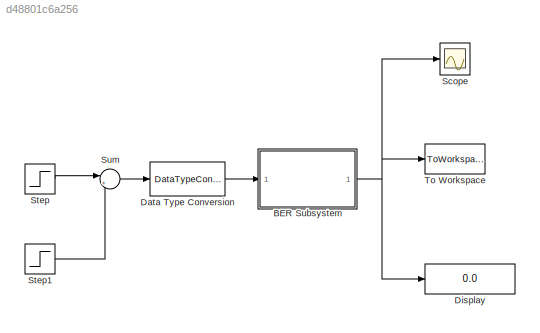
MODEL slx_d48801c6a256
KIND model
CONFIG AbsTol = auto
CONFIG EnableMultiTasking = off
CONFIG FixedStep = auto
CONFIG MaxStep = auto
CONFIG MinStep = auto
CONFIG RelTol = 1e-3
CONFIG SampleTimeConstraint = Unconstrained
CONFIG Solver = VariableStepAuto
CONFIG SolverName = VariableStepAuto
CONFIG StartTime = 0.0
CONFIG StopTime = 270
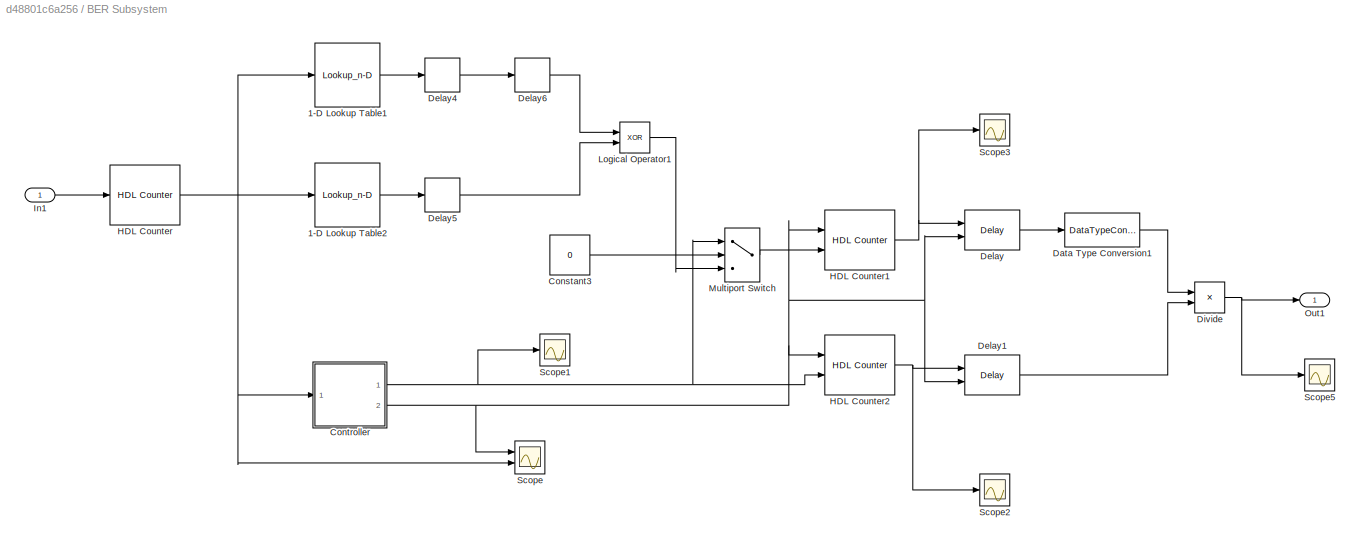
BLOCK [SubSystem] BER Subsystem
  Ports = [1, 1]
  RequestExecContextInheritance = off
  Variant = off
BLOCK [Lookup_n-D] BER Subsystem/1-D Lookup Table1
  BreakpointsForDimension1 = [0:255]
  BreakpointsForDimension1FirstPoint = 10
  BreakpointsForDimension1Spacing = 12
  BreakpointsForDimension2FirstPoint = 10
  BreakpointsForDimension2Spacing = 12
  DiagnosticForOutOfRangeInput = Error
  IndexSearchMethod = Evenly spaced points
  InternalRulePriority = Speed
  InterpMethod = Flat
  NumberOfTableDimensions = 1
  Ports = [1, 1]
  RndMeth = Simplest
  Table = true_data*1
BLOCK [Lookup_n-D] BER Subsystem/1-D Lookup Table2
  BreakpointsForDimension1 = [0:255]
  BreakpointsForDimension1FirstPoint = 10
  BreakpointsForDimension1Spacing = 12
  BreakpointsForDimension2FirstPoint = 10
  BreakpointsForDimension2Spacing = 12
  DiagnosticForOutOfRangeInput = Error
  IndexSearchMethod = Evenly spaced points
  InternalRulePriority = Speed
  InterpMethod = Flat
  NumberOfTableDimensions = 1
  Ports = [1, 1]
  RndMeth = Simplest
  Table = det_data*1
BLOCK [Constant] BER Subsystem/Constant3
  OutDataTypeStr = boolean
  SampleTime = -1
  Value = 0
  VectorParams1D = off
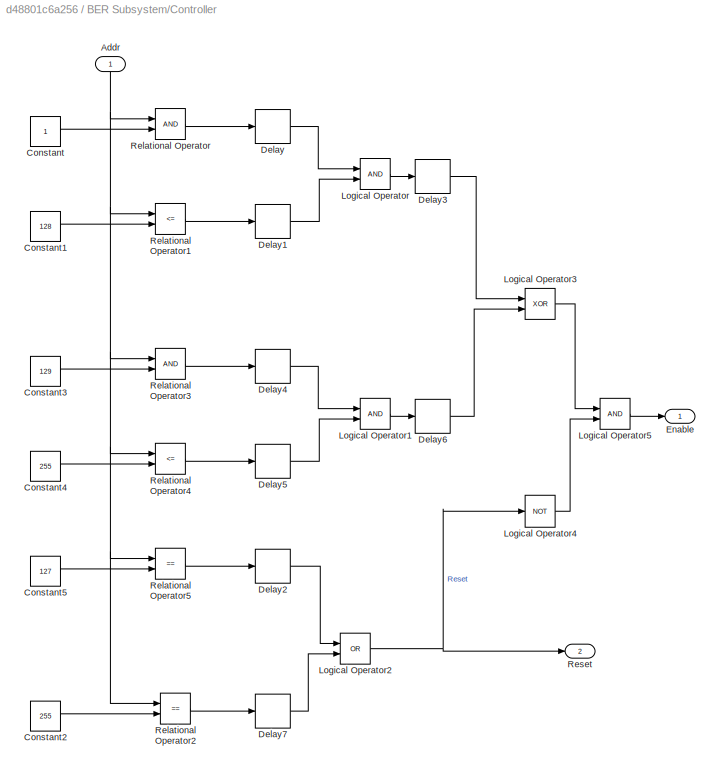
BLOCK [SubSystem] BER Subsystem/Controller
  Ports = [1, 2]
  RequestExecContextInheritance = off
  Variant = off
BLOCK [Inport] BER Subsystem/Controller/Addr
  IconDisplay = Port number
BLOCK [Constant] BER Subsystem/Controller/Constant
  OutDataTypeStr = fixdt(0,10,0)
BLOCK [Constant] BER Subsystem/Controller/Constant1
  OutDataTypeStr = fixdt(0,10,0)
  Value = 128
BLOCK [Constant] BER Subsystem/Controller/Constant2
  OutDataTypeStr = fixdt(0,10,0)
  Value = 255
BLOCK [Constant] BER Subsystem/Controller/Constant3
  OutDataTypeStr = fixdt(0,10,0)
  Value = 129
BLOCK [Constant] BER Subsystem/Controller/Constant4
  OutDataTypeStr = fixdt(0,10,0)
  Value = 255
BLOCK [Constant] BER Subsystem/Controller/Constant5
  OutDataTypeStr = fixdt(0,10,0)
  Value = 127
BLOCK [Delay] BER Subsystem/Controller/Delay
  DelayLength = 1
  InputPortMap = u0
  Ports = [1, 1]
BLOCK [Delay] BER Subsystem/Controller/Delay1
  DelayLength = 1
  InputPortMap = u0
  Ports = [1, 1]
BLOCK [Delay] BER Subsystem/Controller/Delay2
  DelayLength = 1
  InputPortMap = u0
  Ports = [1, 1]
BLOCK [Delay] BER Subsystem/Controller/Delay3
  DelayLength = 4
  InputPortMap = u0
  Ports = [1, 1]
BLOCK [Delay] BER Subsystem/Controller/Delay4
  DelayLength = 1
  InputPortMap = u0
  Ports = [1, 1]
BLOCK [Delay] BER Subsystem/Controller/Delay5
  DelayLength = 1
  InputPortMap = u0
  Ports = [1, 1]
BLOCK [Delay] BER Subsystem/Controller/Delay6
  DelayLength = 4
  InputPortMap = u0
  Ports = [1, 1]
BLOCK [Delay] BER Subsystem/Controller/Delay7
  DelayLength = 1
  InputPortMap = u0
  Ports = [1, 1]
BLOCK [Outport] BER Subsystem/Controller/Enable
  IconDisplay = Port number
BLOCK [Logic] BER Subsystem/Controller/Logical Operator
  AllPortsSameDT = off
  OutDataTypeStr = boolean
  Ports = [2, 1]
BLOCK [Logic] BER Subsystem/Controller/Logical Operator1
  AllPortsSameDT = off
  OutDataTypeStr = boolean
  Ports = [2, 1]
BLOCK [Logic] BER Subsystem/Controller/Logical Operator2
  AllPortsSameDT = off
  Operator = OR
  OutDataTypeStr = boolean
  Ports = [2, 1]
BLOCK [Logic] BER Subsystem/Controller/Logical Operator3
  AllPortsSameDT = off
  Operator = XOR
  OutDataTypeStr = boolean
  Ports = [2, 1]
BLOCK [Logic] BER Subsystem/Controller/Logical Operator4
  AllPortsSameDT = off
  Operator = NOT
  OutDataTypeStr = boolean
  Ports = [1, 1]
BLOCK [Logic] BER Subsystem/Controller/Logical Operator5
  AllPortsSameDT = off
  OutDataTypeStr = boolean
  Ports = [2, 1]
BLOCK [RelationalOperator] BER Subsystem/Controller/Relational Operator
  InputSameDT = off
  OutDataTypeStr = boolean
  Ports = [2, 1]
  RndMeth = Simplest
BLOCK [RelationalOperator] BER Subsystem/Controller/Relational Operator1
  InputSameDT = off
  Operator = <=
  OutDataTypeStr = boolean
  Ports = [2, 1]
BLOCK [RelationalOperator] BER Subsystem/Controller/Relational Operator2
  InputSameDT = off
  Operator = ==
  OutDataTypeStr = boolean
  Ports = [2, 1]
  RndMeth = Simplest
BLOCK [RelationalOperator] BER Subsystem/Controller/Relational Operator3
  InputSameDT = off
  OutDataTypeStr = boolean
  Ports = [2, 1]
  RndMeth = Simplest
BLOCK [RelationalOperator] BER Subsystem/Controller/Relational Operator4
  InputSameDT = off
  Operator = <=
  OutDataTypeStr = boolean
  Ports = [2, 1]
BLOCK [RelationalOperator] BER Subsystem/Controller/Relational Operator5
  InputSameDT = off
  Operator = ==
  OutDataTypeStr = boolean
  Ports = [2, 1]
  RndMeth = Simplest
BLOCK [Outport] BER Subsystem/Controller/Reset
  IconDisplay = Port number
  Port = 2
BLOCK [DataTypeConversion] BER Subsystem/Data Type Conversion1
  OutDataTypeStr = fixdt(1,17,13)
  RndMeth = Floor
  SaturateOnIntegerOverflow = off
BLOCK [Delay] BER Subsystem/Delay
  DelayLength = 1
  ExternalReset = Rising
  InitialCondition = 0
  InputPortMap = u0,r5
  Ports = [2, 1]
  UseCircularBuffer = on
  UserDataPersistent = on
BLOCK [Delay] BER Subsystem/Delay1
  DelayLength = 1
  ExternalReset = Rising
  InitialCondition = 0
  InputPortMap = u0,r5
  Ports = [2, 1]
  UseCircularBuffer = on
  UserDataPersistent = on
BLOCK [Delay] BER Subsystem/Delay4
  DelayLength = 1
  InputPortMap = u0
  Ports = [1, 1]
BLOCK [Delay] BER Subsystem/Delay5
  DelayLength = 1
  InputPortMap = u0
  Ports = [1, 1]
BLOCK [Delay] BER Subsystem/Delay6
  DelayLength = 5
  InputPortMap = u0
  Ports = [1, 1]
BLOCK [Product] BER Subsystem/Divide
  InputSameDT = off
  Inputs = */
  OutDataTypeStr = fixdt(1,17,13)
  Ports = [2, 1]
  RndMeth = Floor
  SaturateOnIntegerOverflow = off
BLOCK [Reference] BER Subsystem/HDL Counter  REF=hdlsllib/HDL Operations/HDL Counter
  Ports = [1, 1]
  SourceBlock = hdlsllib/HDL Operations/HDL Counter
  SourceType = HDL Counter
BLOCK [Reference] BER Subsystem/HDL Counter1  REF=hdlsllib/HDL Operations/HDL Counter
  Ports = [2, 1]
  SourceBlock = hdlsllib/HDL Operations/HDL Counter
  SourceType = HDL Counter
BLOCK [Reference] BER Subsystem/HDL Counter2  REF=hdlsllib/HDL Operations/HDL Counter
  Ports = [2, 1]
  SourceBlock = hdlsllib/HDL Operations/HDL Counter
  SourceType = HDL Counter
BLOCK [Inport] BER Subsystem/In1
  IconDisplay = Port number
BLOCK [Logic] BER Subsystem/Logical Operator1
  AllPortsSameDT = off
  Operator = XOR
  OutDataTypeStr = boolean
  Ports = [2, 1]
BLOCK [MultiPortSwitch] BER Subsystem/Multiport Switch
  DataPortOrder = Zero-based contiguous
  InputSameDT = off
  Inputs = 2
  Ports = [3, 1]
  SaturateOnIntegerOverflow = off
BLOCK [Outport] BER Subsystem/Out1
  IconDisplay = Port number
BLOCK [Scope] BER Subsystem/Scope
  NumInputPorts = 2
  Ports = [2]
  ScopeSpecificationString = Simulink.scopes.TimeScopeBlockCfg('CurrentConfiguration', extmgr.ConfigurationSet(extmgr.Configuration('Core','General UI',true),extmgr.Configuration('Core','Source UI',true),extmgr.Configuration('Sources','WiredSimulink',true,'DataLoggingVariableName','ScopeData1'),extmgr.Configuration('Visuals','Time Domain',true,'SerializedDisplays',{struct('MinYLimReal','-18.40551','MaxYLimReal','124.41675','Y...<+1474ch>
BLOCK [Scope] BER Subsystem/Scope1
  NumInputPorts = 1
  Ports = [1]
  ScopeSpecificationString = Simulink.scopes.TimeScopeBlockCfg('CurrentConfiguration', extmgr.ConfigurationSet(extmgr.Configuration('Core','General UI',true),extmgr.Configuration('Core','Source UI',true),extmgr.Configuration('Sources','WiredSimulink',true,'DataLoggingVariableName','ScopeData2'),extmgr.Configuration('Visuals','Time Domain',true,'SerializedDisplays',{struct('MinYLimReal','-0.125','MaxYLimReal','1.125','YLabelRe...<+1359ch>
BLOCK [Scope] BER Subsystem/Scope2
  NumInputPorts = 1
  Ports = [1]
  ScopeSpecificationString = Simulink.scopes.TimeScopeBlockCfg('CurrentConfiguration', extmgr.ConfigurationSet(extmgr.Configuration('Core','General UI',true),extmgr.Configuration('Core','Source UI',true),extmgr.Configuration('Sources','WiredSimulink',true,'DataLoggingVariableName','ScopeData3'),extmgr.Configuration('Visuals','Time Domain',true,'SerializedDisplays',{struct('MinYLimReal','-14.25','MaxYLimReal','138.25','YLabelR...<+1465ch>
BLOCK [Scope] BER Subsystem/Scope3
  NumInputPorts = 1
  Ports = [1]
  ScopeSpecificationString = Simulink.scopes.TimeScopeBlockCfg('CurrentConfiguration', extmgr.ConfigurationSet(extmgr.Configuration('Core','General UI',true),extmgr.Configuration('Core','Source UI',true),extmgr.Configuration('Sources','WiredSimulink',true,'DataLoggingVariableName','ScopeData4'),extmgr.Configuration('Visuals','Time Domain',true,'SerializedDisplays',{struct('MinYLimReal','-0.87019','MaxYLimReal','17.19031','YLa...<+1450ch>
BLOCK [Scope] BER Subsystem/Scope5
  NumInputPorts = 1
  Ports = [1]
  ScopeSpecificationString = Simulink.scopes.TimeScopeBlockCfg('CurrentConfiguration', extmgr.ConfigurationSet(extmgr.Configuration('Core','General UI',true),extmgr.Configuration('Core','Source UI',true),extmgr.Configuration('Sources','WiredSimulink',true,'DataLoggingVariableName','ScopeData5'),extmgr.Configuration('Visuals','Time Domain',true,'SerializedDisplays',{struct('MinYLimReal','0.03136','MaxYLimReal','0.03331','YLabe...<+1440ch>
BLOCK [DataTypeConversion] Data Type Conversion
  OutDataTypeStr = boolean
  RndMeth = Floor
  SaturateOnIntegerOverflow = off
BLOCK [Display] Display
  Decimation = 1
  Ports = [1]
BLOCK [Scope] Scope
  NumInputPorts = 1
  Ports = [1]
  ScopeSpecificationString = Simulink.scopes.TimeScopeBlockCfg('CurrentConfiguration', extmgr.ConfigurationSet(extmgr.Configuration('Core','General UI',true),extmgr.Configuration('Core','Source UI',true),extmgr.Configuration('Sources','WiredSimulink',true),extmgr.Configuration('Visuals','Time Domain',true,'SerializedDisplays',{struct('MinYLimReal','-0.99998','MaxYLimReal','8.99986','YLabelReal','','MinYLimMag','0.00000','MaxY...<+1333ch>
BLOCK [Step] Step
  SampleTime = 1
  Time = 0
BLOCK [Step] Step1
  SampleTime = 1
BLOCK [Sum] Sum
  IconShape = round
  InputSameDT = off
  Inputs = |+-
  OutDataTypeStr = Inherit: Inherit via internal rule
  Ports = [2, 1]
  SaturateOnIntegerOverflow = off
BLOCK [ToWorkspace] To Workspace
  FixptAsFi = on
  MaxDataPoints = inf
  Ports = [1]
  SampleTime = -1
  Save2DSignal = 3-D array (concatenate along third dimension)
  VariableName = BER
LINE BER Subsystem/1-D Lookup Table1:1 -> BER Subsystem/Delay4:1
LINE BER Subsystem/1-D Lookup Table2:1 -> BER Subsystem/Delay5:1
LINE BER Subsystem/Constant3:1 -> BER Subsystem/Multiport Switch:2
NET BER Subsystem/Controller/Addr:1 -> BER Subsystem/Controller/Relational Operator1:1, BER Subsystem/Controller/Relational Operator2:1, BER Subsystem/Controller/Relational Operator3:1, BER Subsystem/Controller/Relational Operator4:1, BER Subsystem/Controller/Relational Operator5:1, BER Subsystem/Controller/Relational Operator:1
LINE BER Subsystem/Controller/Constant1:1 -> BER Subsystem/Controller/Relational Operator1:2
LINE BER Subsystem/Controller/Constant2:1 -> BER Subsystem/Controller/Relational Operator2:2
LINE BER Subsystem/Controller/Constant3:1 -> BER Subsystem/Controller/Relational Operator3:2
LINE BER Subsystem/Controller/Constant4:1 -> BER Subsystem/Controller/Relational Operator4:2
LINE BER Subsystem/Controller/Constant5:1 -> BER Subsystem/Controller/Relational Operator5:2
LINE BER Subsystem/Controller/Constant:1 -> BER Subsystem/Controller/Relational Operator:2
LINE BER Subsystem/Controller/Delay1:1 -> BER Subsystem/Controller/Logical Operator:2
LINE BER Subsystem/Controller/Delay2:1 -> BER Subsystem/Controller/Logical Operator2:1
LINE BER Subsystem/Controller/Delay3:1 -> BER Subsystem/Controller/Logical Operator3:1
LINE BER Subsystem/Controller/Delay4:1 -> BER Subsystem/Controller/Logical Operator1:1
LINE BER Subsystem/Controller/Delay5:1 -> BER Subsystem/Controller/Logical Operator1:2
LINE BER Subsystem/Controller/Delay6:1 -> BER Subsystem/Controller/Logical Operator3:2
LINE BER Subsystem/Controller/Delay7:1 -> BER Subsystem/Controller/Logical Operator2:2
LINE BER Subsystem/Controller/Delay:1 -> BER Subsystem/Controller/Logical Operator:1
LINE BER Subsystem/Controller/Logical Operator1:1 -> BER Subsystem/Controller/Delay6:1
NET BER Subsystem/Controller/Logical Operator2:1 -> BER Subsystem/Controller/Logical Operator4:1, BER Subsystem/Controller/Reset:1
LINE BER Subsystem/Controller/Logical Operator3:1 -> BER Subsystem/Controller/Logical Operator5:1
LINE BER Subsystem/Controller/Logical Operator4:1 -> BER Subsystem/Controller/Logical Operator5:2
LINE BER Subsystem/Controller/Logical Operator5:1 -> BER Subsystem/Controller/Enable:1
LINE BER Subsystem/Controller/Logical Operator:1 -> BER Subsystem/Controller/Delay3:1
LINE BER Subsystem/Controller/Relational Operator1:1 -> BER Subsystem/Controller/Delay1:1
LINE BER Subsystem/Controller/Relational Operator2:1 -> BER Subsystem/Controller/Delay7:1
LINE BER Subsystem/Controller/Relational Operator3:1 -> BER Subsystem/Controller/Delay4:1
LINE BER Subsystem/Controller/Relational Operator4:1 -> BER Subsystem/Controller/Delay5:1
LINE BER Subsystem/Controller/Relational Operator5:1 -> BER Subsystem/Controller/Delay2:1
LINE BER Subsystem/Controller/Relational Operator:1 -> BER Subsystem/Controller/Delay:1
NET BER Subsystem/Controller:1 -> BER Subsystem/HDL Counter2:2, BER Subsystem/Multiport Switch:1, BER Subsystem/Scope1:1
NET BER Subsystem/Controller:2 -> BER Subsystem/Delay1:2, BER Subsystem/Delay:2, BER Subsystem/HDL Counter1:1, BER Subsystem/HDL Counter2:1, BER Subsystem/Scope:1
LINE BER Subsystem/Data Type Conversion1:1 -> BER Subsystem/Divide:1
LINE BER Subsystem/Delay1:1 -> BER Subsystem/Divide:2
LINE BER Subsystem/Delay4:1 -> BER Subsystem/Delay6:1
LINE BER Subsystem/Delay5:1 -> BER Subsystem/Logical Operator1:2
LINE BER Subsystem/Delay6:1 -> BER Subsystem/Logical Operator1:1
LINE BER Subsystem/Delay:1 -> BER Subsystem/Data Type Conversion1:1
NET BER Subsystem/Divide:1 -> BER Subsystem/Out1:1, BER Subsystem/Scope5:1
NET BER Subsystem/HDL Counter1:1 -> BER Subsystem/Delay:1, BER Subsystem/Scope3:1
NET BER Subsystem/HDL Counter2:1 -> BER Subsystem/Delay1:1, BER Subsystem/Scope2:1
NET BER Subsystem/HDL Counter:1 -> BER Subsystem/1-D Lookup Table1:1, BER Subsystem/1-D Lookup Table2:1, BER Subsystem/Controller:1, BER Subsystem/Scope:2
LINE BER Subsystem/In1:1 -> BER Subsystem/HDL Counter:1
LINE BER Subsystem/Logical Operator1:1 -> BER Subsystem/Multiport Switch:3
LINE BER Subsystem/Multiport Switch:1 -> BER Subsystem/HDL Counter1:2
NET BER Subsystem:1 -> Display:1, Scope:1, To Workspace:1
LINE Data Type Conversion:1 -> BER Subsystem:1
LINE Step1:1 -> Sum:2
LINE Step:1 -> Sum:1
LINE Sum:1 -> Data Type Conversion:1
note: NET lines group one-source signal fan-out (src -> all destinations, sorted); 1:1 wires keep LINE
